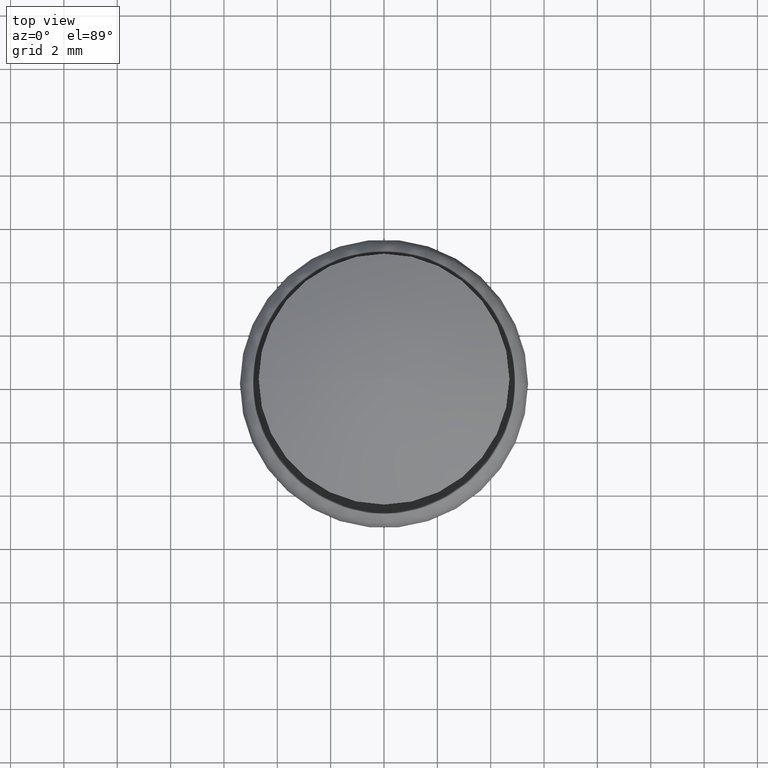
[diagram: clean part render]
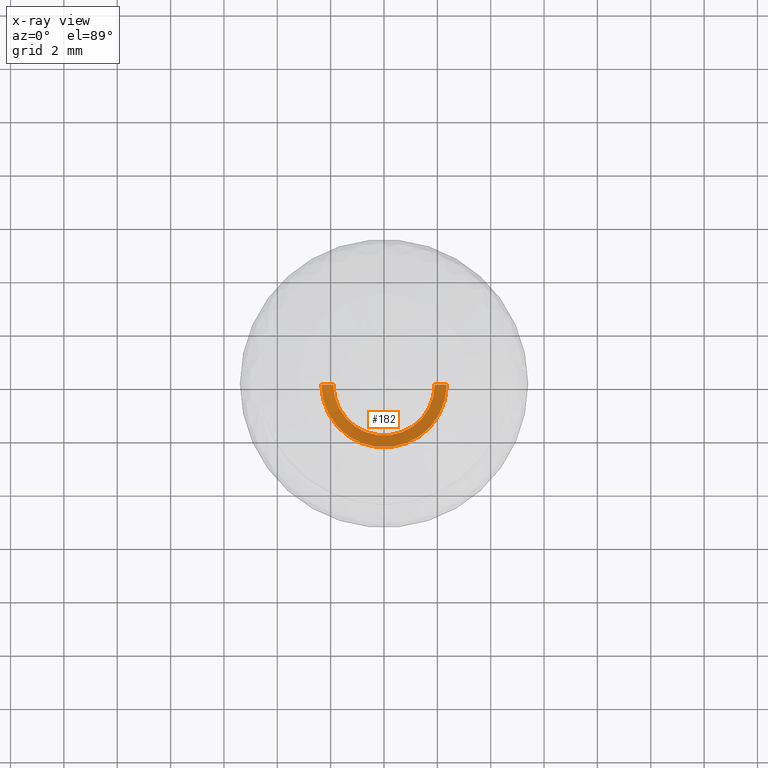
[diagram: x-ray — body ghosted, one internal face saturated and labeled with its STEP entity id]
A machine part, top view, then the same camera in x-ray: the body is ghosted and one INTERNAL B-rep face — a face not visible from any outside direction — is saturated and labeled: STEP entity #182.
In plain terms, the highlighted face is a freeform B-spline surface patch.
Its self-contained STEP definition (entity closure, byte-faithful):
#182=ADVANCED_FACE('',(#898),#897,.T.);
#897=( BOUNDED_SURFACE() B_SPLINE_SURFACE( 2,1,((#1510,#1511),(#1512,#1513),(#1514,#1515),(#1516,#1517),(#1518,#1519)), .UNSPECIFIED.,.F.,.F.,.F.) B_SPLINE_SURFACE_WITH_KNOTS((3,2,3),(2,2),(0.00000000000E+00,5.00000000000E-01,1.00000000000E+00),(0.00000000000E+00,1.00000000000E+00), .UNSPECIFIED. ) GEOMETRIC_REPRESENTATION_ITEM() RATIONAL_B_SPLINE_SURFACE(((1.00000000000E+00,1.00000000000E+00),(7.07106781187E-01,7.07106781187E-01),(1.00000000000E+00,1.00000000000E+00),(7.07106781187E-01,7.07106781187E-01),(1.00000000000E+00,1.00000000000E+00))) REPRESENTATION_ITEM('') SURFACE() );
#898=FACE_OUTER_BOUND('',#1520,.T.);
#1510=CARTESIAN_POINT('',(-1.90000000000E+00,-4.65365783676E-16,-6.90000000000E+00));
#1511=CARTESIAN_POINT('',(-2.35000000000E+00,-5.75583995599E-16,-6.40000000000E+00));
#1512=CARTESIAN_POINT('',(-1.90000000000E+00,-1.90000000000E+00,-6.90000000000E+00));
#1513=CARTESIAN_POINT('',(-2.35000000000E+00,-2.35000000000E+00,-6.40000000000E+00));
#1514=CARTESIAN_POINT('',(3.49024337757E-16,-1.90000000000E+00,-6.90000000000E+00));
#1515=CARTESIAN_POINT('',(4.31687996699E-16,-2.35000000000E+00,-6.40000000000E+00));
#1516=CARTESIAN_POINT('',(1.90000000000E+00,-1.90000000000E+00,-6.90000000000E+00));
#1517=CARTESIAN_POINT('',(2.35000000000E+00,-2.35000000000E+00,-6.40000000000E+00));
#1518=CARTESIAN_POINT('',(1.90000000000E+00,2.32682891838E-16,-6.90000000000E+00));
#1519=CARTESIAN_POINT('',(2.35000000000E+00,2.87791997800E-16,-6.40000000000E+00));
#1520=EDGE_LOOP('',(#1966,#1967,#1968,#1969));
#1966=ORIENTED_EDGE('',*,*,#2186,.T.);
#1967=ORIENTED_EDGE('',*,*,#2187,.F.);
#1968=ORIENTED_EDGE('',*,*,#2185,.F.);
#1969=ORIENTED_EDGE('',*,*,#2188,.T.);
#2185=EDGE_CURVE('',#3374,#3373,#3393,.T.);
#2186=EDGE_CURVE('',#3399,#3400,#3401,.T.);
#2187=EDGE_CURVE('',#3373,#3400,#3407,.T.);
#2188=EDGE_CURVE('',#3374,#3399,#3413,.T.);
#3373=VERTEX_POINT('',#4274);
#3374=VERTEX_POINT('',#4275);
#3393=CIRCLE('',#4287,1.90000000000E+00);
#3399=VERTEX_POINT('',#4288);
#3400=VERTEX_POINT('',#4289);
#3401=CIRCLE('',#4293,2.35000000000E+00);
#3407=(BOUNDED_CURVE() B_SPLINE_CURVE(1,(#4294,#4295),.UNSPECIFIED.,.F.,.F.) B_SPLINE_CURVE_WITH_KNOTS((2,2),(0.00000000000E+00,1.00000000000E+00),.UNSPECIFIED.) CURVE() GEOMETRIC_REPRESENTATION_ITEM() RATIONAL_B_SPLINE_CURVE((1.00000000000E+00,1.00000000000E+00)) REPRESENTATION_ITEM('') );
#3413=(BOUNDED_CURVE() B_SPLINE_CURVE(1,(#4296,#4297),.UNSPECIFIED.,.F.,.F.) B_SPLINE_CURVE_WITH_KNOTS((2,2),(0.00000000000E+00,1.00000000000E+00),.UNSPECIFIED.) CURVE() GEOMETRIC_REPRESENTATION_ITEM() RATIONAL_B_SPLINE_CURVE((7.50000000000E-01,7.50000000000E-01)) REPRESENTATION_ITEM('') );
#4274=CARTESIAN_POINT('',(-1.90000000000E+00,0.00000000000E+00,-6.90000000000E+00));
#4275=CARTESIAN_POINT('',(1.90000000000E+00,2.22044604925E-16,-6.90000000000E+00));
#4284=CARTESIAN_POINT('',(0.00000000000E+00,0.00000000000E+00,-6.90000000000E+00));
#4285=DIRECTION('',(-0.00000000000E+00,0.00000000000E+00,-1.00000000000E+00));
#4286=DIRECTION('',(-1.00000000000E+00,-1.22460635382E-16,0.00000000000E+00));
#4287=AXIS2_PLACEMENT_3D('',#4284,#4285,#4286);
#4288=CARTESIAN_POINT('',(2.35000000000E+00,0.00000000000E+00,-6.40000000000E+00));
#4289=CARTESIAN_POINT('',(-2.35000000000E+00,0.00000000000E+00,-6.40000000000E+00));
#4290=CARTESIAN_POINT('',(0.00000000000E+00,0.00000000000E+00,-6.40000000000E+00));
#4291=DIRECTION('',(-0.00000000000E+00,0.00000000000E+00,-1.00000000000E+00));
#4292=DIRECTION('',(-1.00000000000E+00,-1.22460635382E-16,0.00000000000E+00));
#4293=AXIS2_PLACEMENT_3D('',#4290,#4291,#4292);
#4294=CARTESIAN_POINT('',(-1.90000000000E+00,-4.65350414453E-16,-6.90000000000E+00));
#4295=CARTESIAN_POINT('',(-2.35000000000E+00,-5.75564986297E-16,-6.40000000000E+00));
#4296=CARTESIAN_POINT('',(1.90000000000E+00,4.44089209850E-16,-6.90000000000E+00));
#4297=CARTESIAN_POINT('',(2.35000000000E+00,7.40148683083E-16,-6.40000000000E+00));